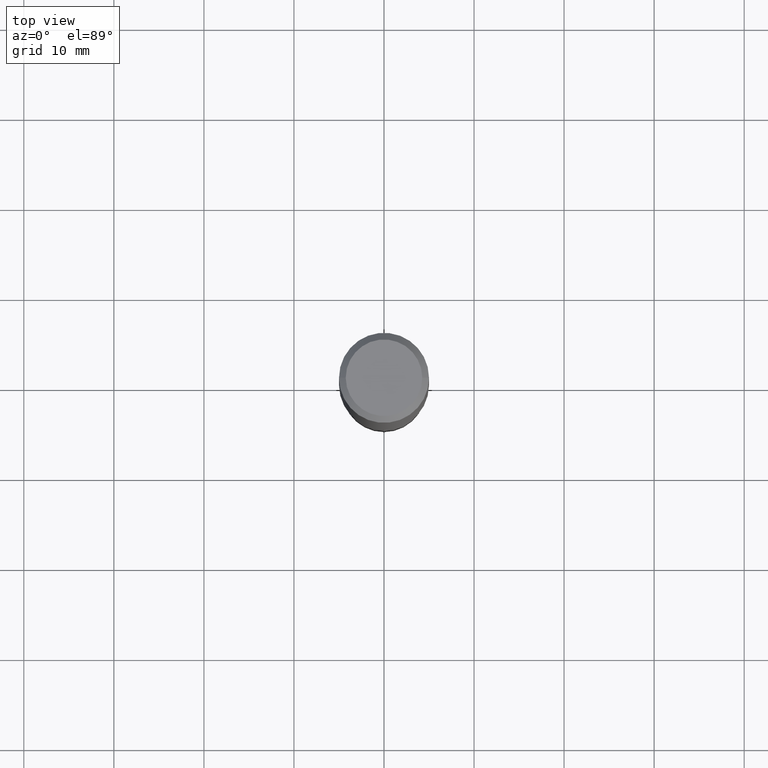
[diagram: clean part render]
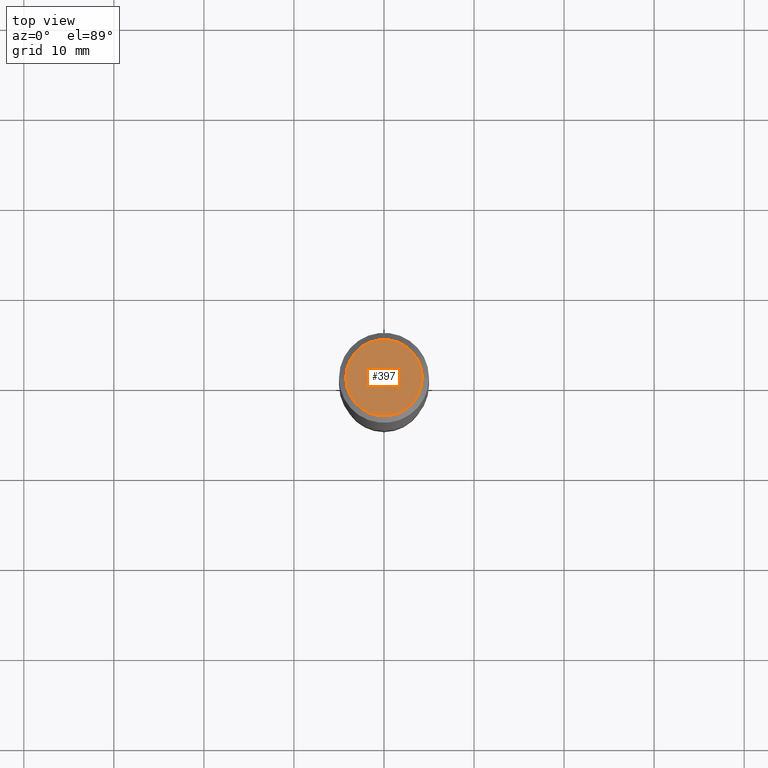
[diagram: same view with one face highlighted and labeled with its STEP entity id]
A machine part, top view. The second image highlights one B-rep face of the part: STEP entity #397.
In plain terms, the highlighted planar face has unit normal (0, -0, -1).
Its self-contained STEP definition (entity closure, byte-faithful):
#13 = VERTEX_POINT ( 'NONE', #60 ) ;
#45 = AXIS2_PLACEMENT_3D ( 'NONE', #449, #454, #305 ) ;
#60 = CARTESIAN_POINT ( 'NONE',  ( 0.1673224999999999851, -1.300749711163072397E-15, 4.096137381456741925E-18 ) ) ;
#86 = CARTESIAN_POINT ( 'NONE',  ( -5.008488096090108951E-47, 7.150793614331948590E-33, 2.048068690724054183E-18 ) ) ;
#89 = EDGE_CURVE ( 'NONE', #13, #401, #348, .T. ) ;
#94 = DIRECTION ( 'NONE',  ( 2.438088387897960049E-29, -3.491481338843145188E-15, -1.000000000000000000 ) ) ;
#170 = DIRECTION ( 'NONE',  ( -1.000000000000000000, 6.982962677686265922E-15, -4.876176775795935793E-29 ) ) ;
#255 = ORIENTED_EDGE ( 'NONE', *, *, #89, .T. ) ;
#261 = FACE_OUTER_BOUND ( 'NONE', #422, .T. ) ;
#264 = CIRCLE ( 'NONE', #45, 0.1673224999999999851 ) ;
#279 = AXIS2_PLACEMENT_3D ( 'NONE', #86, #94, #170 ) ;
#280 = DIRECTION ( 'NONE',  ( 1.000000000000000000, -6.982962677686267499E-15, 4.876294436782262290E-29 ) ) ;
#292 = ORIENTED_EDGE ( 'NONE', *, *, #409, .T. ) ;
#305 = DIRECTION ( 'NONE',  ( 1.000000000000000000, -6.982962677686267499E-15, 4.876294436782262290E-29 ) ) ;
#348 = CIRCLE ( 'NONE', #407, 0.1673224999999999851 ) ;
#379 = CARTESIAN_POINT ( 'NONE',  ( -0.1673224999999999851, 1.219954130253505263E-15, 4.096137381439757534E-18 ) ) ;
#397 = ADVANCED_FACE ( 'NONE', ( #261 ), #404, .F. ) ;
#401 = VERTEX_POINT ( 'NONE', #379 ) ;
#404 = PLANE ( 'NONE',  #279 ) ;
#407 = AXIS2_PLACEMENT_3D ( 'NONE', #424, #466, #280 ) ;
#409 = EDGE_CURVE ( 'NONE', #401, #13, #264, .T. ) ;
#422 = EDGE_LOOP ( 'NONE', ( #292, #255 ) ) ;
#424 = CARTESIAN_POINT ( 'NONE',  ( -1.001697619218021790E-46, 1.430158722866389718E-32, 4.096137381448108366E-18 ) ) ;
#449 = CARTESIAN_POINT ( 'NONE',  ( -1.001697619218021790E-46, 1.430158722866389718E-32, 4.096137381448108366E-18 ) ) ;
#454 = DIRECTION ( 'NONE',  ( -2.445468806185136597E-29, 3.491481338843145583E-15, 1.000000000000000000 ) ) ;
#466 = DIRECTION ( 'NONE',  ( -2.445468806185136597E-29, 3.491481338843145583E-15, 1.000000000000000000 ) ) ;